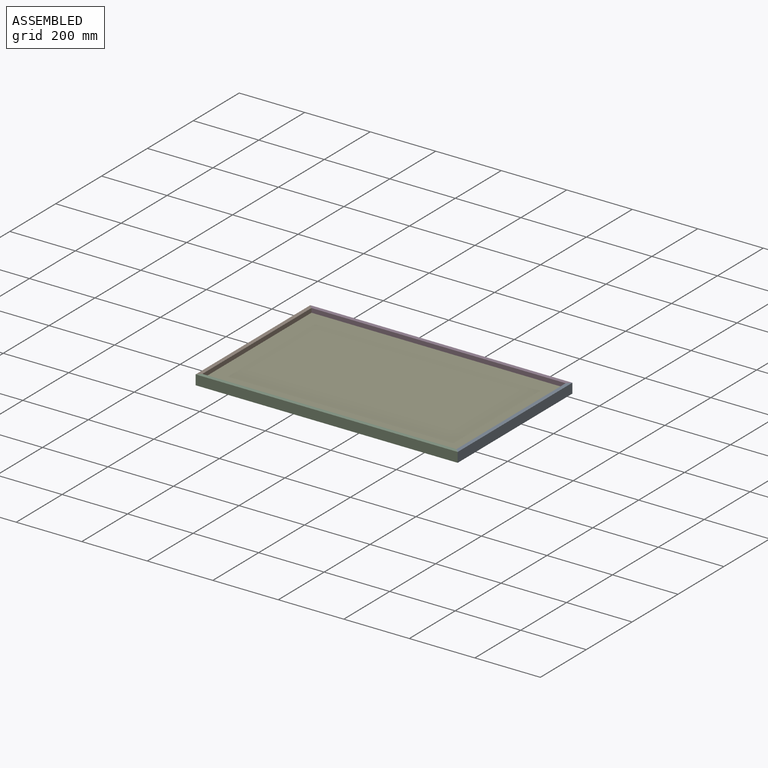
[diagram: assembled view]
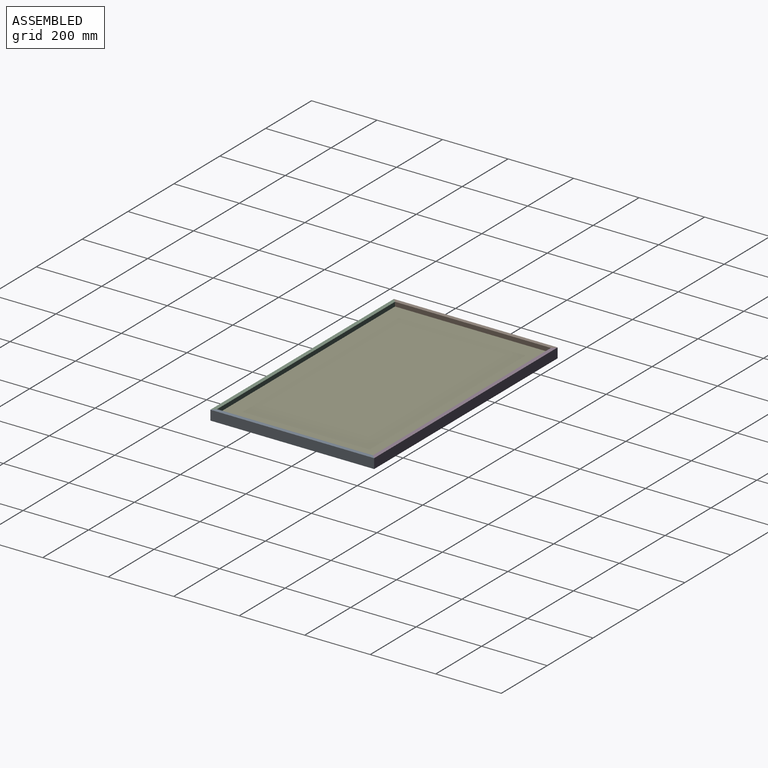
[diagram: assembled view, second angle]
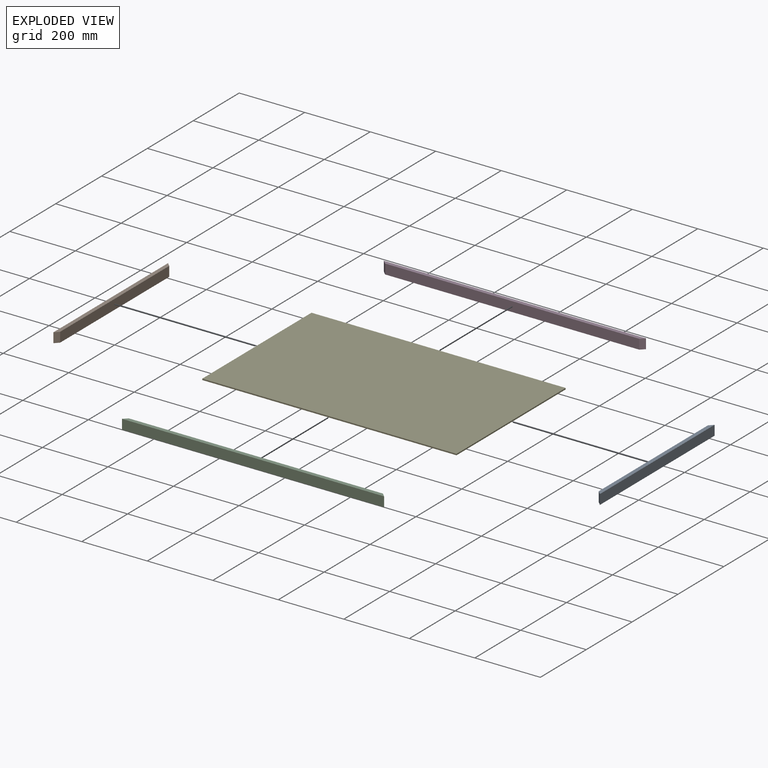
[diagram: exploded view]
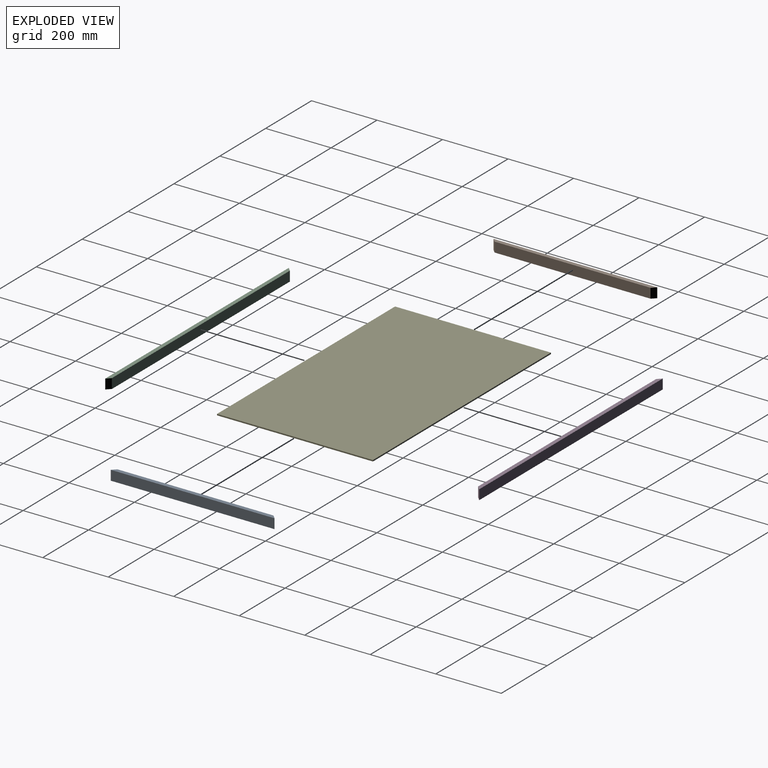
[diagram: exploded view, second angle]
ASSEMBLY  parts=5 mates=4
PART A: 6 faces, bbox 30x12x500 mm
  f0: plane 500x12mm, normal (-1,0,0), area 5856mm2, adj f2,f3,f4,f5
  f1: plane 500x12mm, normal (1,0,0), area 5856mm2, adj f2,f3,f4,f5
  f2: plane 476x30mm, normal (0,-1,0), area 14280mm2, adj f0,f1,f4,f5
  f3: plane 500x30mm, normal (0,1,0), area 15000mm2, adj f0,f1,f4,f5
  f4: plane 30x12mm, normal (0,-0.71,0.71), area 509.1mm2, adj f0,f1,f2,f3
  f5: plane 30x12mm, normal (0,-0.71,-0.71), area 509.1mm2, adj f0,f1,f2,f3
PART B: 6 faces, bbox 30x12x500 mm
  f0: plane 500x12mm, normal (1,0,0), area 5856mm2, adj f2,f3,f4,f5
  f1: plane 500x12mm, normal (-1,0,0), area 5856mm2, adj f2,f3,f4,f5
  f2: plane 476x30mm, normal (0,-1,0), area 14280mm2, adj f0,f1,f4,f5
  f3: plane 500x30mm, normal (0,1,0), area 15000mm2, adj f0,f1,f4,f5
  f4: plane 30x12mm, normal (0,-0.71,0.71), area 509.1mm2, adj f0,f1,f2,f3
  f5: plane 30x12mm, normal (0,-0.71,-0.71), area 509.1mm2, adj f0,f1,f2,f3
PART C: 6 faces, bbox 800x12x30 mm
  f0: plane 800x12mm, normal (0,0,1), area 9456mm2, adj f2,f3,f4,f5
  f1: plane 800x12mm, normal (0,0,-1), area 9456mm2, adj f2,f3,f4,f5
  f2: plane 776x30mm, normal (0,-1,0), area 23280mm2, adj f0,f1,f4,f5
  f3: plane 800x30mm, normal (0,1,0), area 24000mm2, adj f0,f1,f4,f5
  f4: plane 30x12mm, normal (0.71,-0.71,0), area 509.1mm2, adj f0,f1,f2,f3
  f5: plane 30x12mm, normal (-0.71,-0.71,0), area 509.1mm2, adj f0,f1,f2,f3
PART D: 6 faces, bbox 800x12x30 mm
  f0: plane 800x12mm, normal (0,0,-1), area 9456mm2, adj f2,f3,f4,f5
  f1: plane 800x12mm, normal (0,0,1), area 9456mm2, adj f2,f3,f4,f5
  f2: plane 776x30mm, normal (0,-1,0), area 23280mm2, adj f0,f1,f4,f5
  f3: plane 800x30mm, normal (0,1,0), area 24000mm2, adj f0,f1,f4,f5
  f4: plane 30x12mm, normal (0.71,-0.71,0), area 509.1mm2, adj f0,f1,f2,f3
  f5: plane 30x12mm, normal (-0.71,-0.71,0), area 509.1mm2, adj f0,f1,f2,f3
PART E: 6 faces, bbox 776x4x476 mm
  f0: plane 476x4mm, normal (-1,0,0), area 1904mm2, adj f1,f3,f4,f5
  f1: plane 776x4mm, normal (0,0,-1), area 3104mm2, adj f0,f2,f4,f5
  f2: plane 476x4mm, normal (1,0,0), area 1904mm2, adj f1,f3,f4,f5
  f3: plane 776x4mm, normal (0,0,1), area 3104mm2, adj f0,f2,f4,f5
  f4: plane 776x476mm, normal (0,-1,0), area 369376mm2, adj f0,f1,f2,f3
  f5: plane 776x476mm, normal (0,1,0), area 369376mm2, adj f0,f1,f2,f3
PLACE A rot(axis=(-0.58,-0.58,-0.58),120deg) t=(524.3,-253.02,-240.18)mm
PLACE B rot(axis=(-0.58,0.58,0.58),120deg) t=(-283.7,-158.99,-248.31)mm
PLACE C rot(axis=(1,0,0),180deg) t=(-1.95,-508,-41.88)mm
PLACE D at identity
PLACE E rot(axis=(-1,0,0),90deg) t=(120.3,-254,270.38)mm fixed
MATE fastened E.f1 <-> C.f2  axis (0,-1,0) through (120.3,-492,272.38)mm
MATE fastened E.f3 <-> D.f2  axis (0,1,0) through (120.3,-16,272.38)mm
MATE fastened E.f2 <-> A.f2  axis (1,0,0) through (508.3,-254,272.38)mm
MATE fastened E.f0 <-> B.f2  axis (-1,0,0) through (-267.7,-254,272.38)mm
